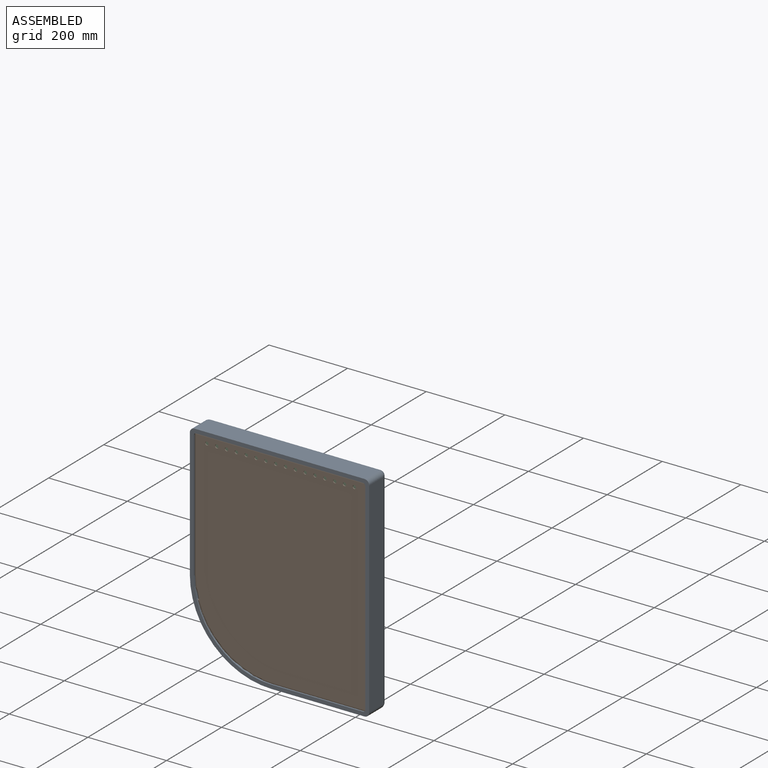
[diagram: assembled view]
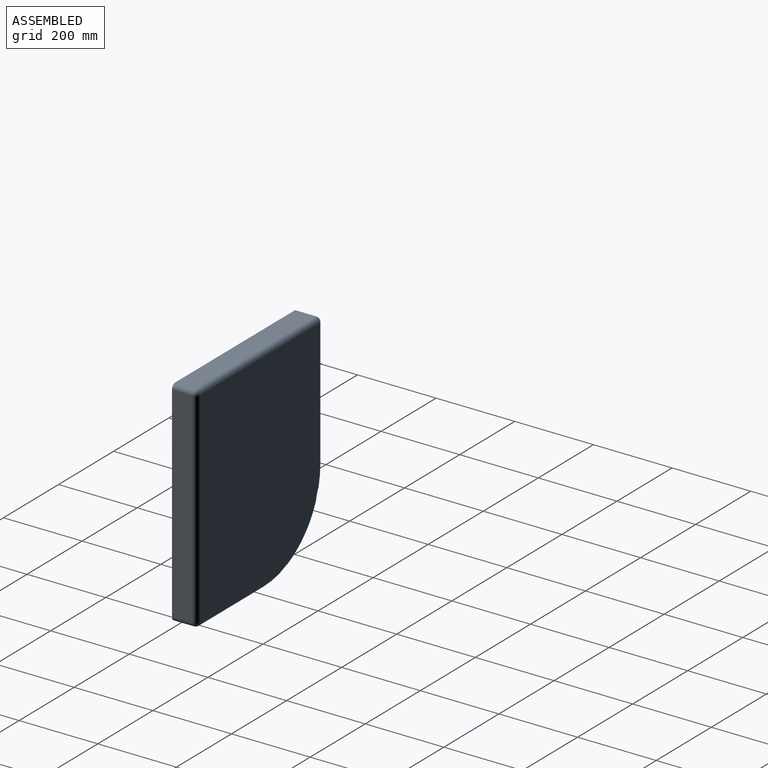
[diagram: assembled view, second angle]
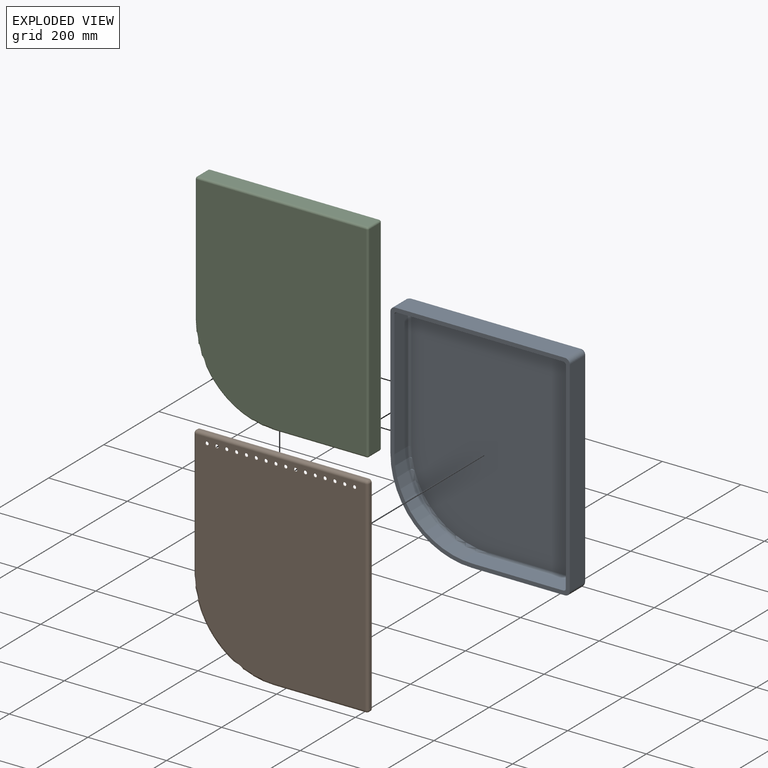
[diagram: exploded view]
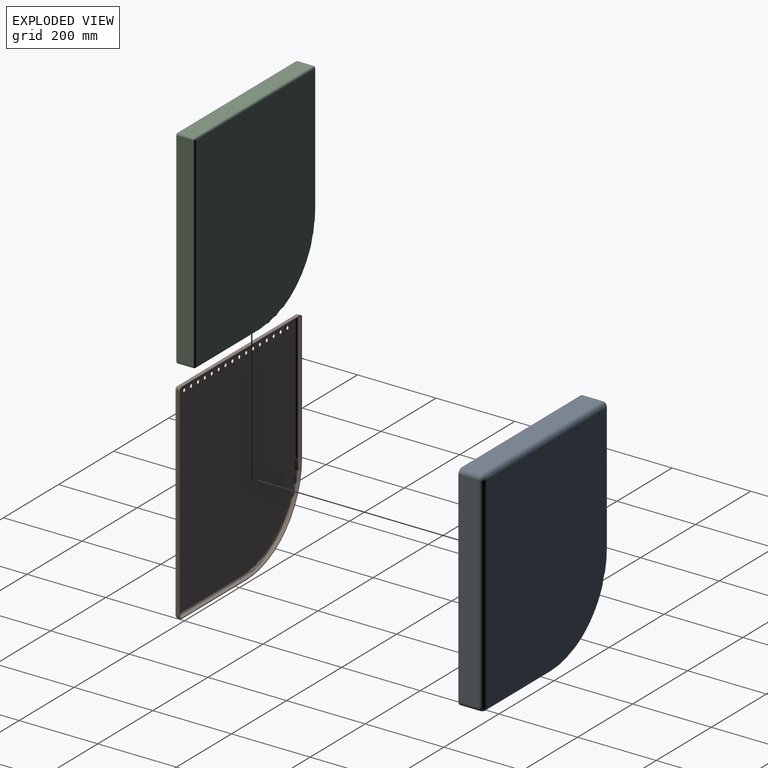
[diagram: exploded view, second angle]
ASSEMBLY  parts=3 mates=3
PART A: 35 faces, bbox 473.1x64x563.1 mm
  f0: plane 546x456mm, normal (0,-1,0), area 18699.2mm2, adj f1,f2,f3,f4,f6,f7,f9,f12
  f1: plane 432x52mm, normal (0,0,1), area 22464mm2, adj f0,f7,f11,f12
  f2: plane 326x52mm, normal (-1,0,0), area 16952mm2, adj f0,f6,f12,f16
  f3: plane 236x52mm, normal (0,0,-1), area 12272mm2, adj f0,f6,f9,f15
  f4: plane 522x52mm, normal (1,0,0), area 27144mm2, adj f0,f7,f9,f10
  f5: plane 522x432mm, normal (0,1,0), area 217259.9mm2, adj f10,f11,f15,f16,f17
  f6: cylinder r=208mm len=208mm, axis (0,1,0), area 16989.7mm2, adj f0,f2,f3,f17
  f7: cylinder r=12mm len=52mm, axis (0,1,0), area 980.2mm2, adj f0,f1,f4,f8
  f8: sphere r=12mm, area 226.2mm2, adj f7,f10,f11
  f9: cylinder r=12mm len=52mm, axis (0,-1,0), area 980.2mm2, adj f0,f3,f4,f13
  f10: cylinder r=12mm len=522mm, axis (0,0,1), area 9839.5mm2, adj f4,f5,f8,f13
  f11: cylinder r=12mm len=432mm, axis (-1,0,0), area 8143mm2, adj f1,f5,f8,f14
  f12: cylinder r=12mm len=52mm, axis (0,-1,0), area 980.2mm2, adj f0,f1,f2,f14
  f13: sphere r=12mm, area 226.2mm2, adj f9,f10,f15
  f14: sphere r=12mm, area 226.2mm2, adj f11,f12,f16
  f15: cylinder r=12mm len=236mm, axis (1,0,0), area 4448.5mm2, adj f3,f5,f13,f17
  f16: cylinder r=12mm len=326mm, axis (0,0,-1), area 6145mm2, adj f2,f5,f14,f17
  f17: torus R=196mm, axis (0,-1,0), area 6029.5mm2, adj f5,f6,f15,f16
  f18: plane 424x48mm, normal (0,0,-1), area 20352mm2, adj f0,f24,f28,f29
  f19: plane 322x48mm, normal (1,0,0), area 15456mm2, adj f0,f23,f29,f33
  f20: plane 232x48mm, normal (0,0,1), area 11136mm2, adj f0,f23,f26,f32
  f21: plane 514x48mm, normal (-1,0,0), area 24672mm2, adj f0,f24,f26,f27
  f22: plane 514x424mm, normal (0,-1,0), area 210024.9mm2, adj f27,f28,f32,f33,f34
  f23: cylinder r=198mm len=198mm, axis (0,1,0), area 14928.8mm2, adj f0,f19,f20,f34
  f24: cylinder r=6mm len=48mm, axis (0,1,0), area 452.4mm2, adj f0,f18,f21,f25
  f25: sphere r=6mm, area 56.5mm2, adj f24,f27,f28
  f26: cylinder r=6mm len=48mm, axis (0,-1,0), area 452.4mm2, adj f0,f20,f21,f30
  f27: cylinder r=6mm len=514mm, axis (0,0,1), area 4844.3mm2, adj f21,f22,f25,f30
  f28: cylinder r=6mm len=424mm, axis (-1,0,0), area 3996.1mm2, adj f18,f22,f25,f31
  f29: cylinder r=6mm len=48mm, axis (0,-1,0), area 452.4mm2, adj f0,f18,f19,f31
  f30: sphere r=6mm, area 56.5mm2, adj f26,f27,f32
  f31: sphere r=6mm, area 56.5mm2, adj f28,f29,f33
  f32: cylinder r=6mm len=232mm, axis (1,0,0), area 2186.5mm2, adj f20,f22,f30,f34
  f33: cylinder r=6mm len=322mm, axis (0,0,-1), area 3034.8mm2, adj f19,f22,f31,f34
  f34: torus R=192mm, axis (0,-1,0), area 2899mm2, adj f22,f23,f32,f33
PART B: 51 faces, bbox 460.6x14x550.6 mm
  f0: cylinder r=4.36mm len=8.72mm, axis (0,-1,0), area 54.8mm2, adj f20,f26
  f1: cylinder r=4.36mm len=8.72mm, axis (0,-1,0), area 54.8mm2, adj f20,f26
  f2: cylinder r=4.36mm len=8.72mm, axis (0,-1,0), area 54.8mm2, adj f20,f26
  f3: cylinder r=4.36mm len=8.72mm, axis (0,-1,0), area 54.8mm2, adj f20,f26
  f4: cylinder r=4.36mm len=8.72mm, axis (0,-1,0), area 54.8mm2, adj f20,f26
  f5: cylinder r=4.36mm len=8.72mm, axis (0,-1,0), area 54.8mm2, adj f20,f26
  f6: cylinder r=4.36mm len=8.72mm, axis (0,-1,0), area 54.8mm2, adj f20,f26
  f7: cylinder r=4.36mm len=8.72mm, axis (0,-1,0), area 54.8mm2, adj f20,f26
  f8: cylinder r=4.36mm len=8.72mm, axis (0,-1,0), area 54.8mm2, adj f20,f26
  f9: cylinder r=4.36mm len=8.72mm, axis (0,-1,0), area 54.8mm2, adj f20,f26
  f10: cylinder r=4.36mm len=8.72mm, axis (0,-1,0), area 54.8mm2, adj f20,f26
  f11: cylinder r=4.36mm len=8.72mm, axis (0,-1,0), area 54.8mm2, adj f20,f26
  f12: cylinder r=4.36mm len=8.72mm, axis (0,-1,0), area 54.8mm2, adj f20,f26
  f13: cylinder r=4.36mm len=8.72mm, axis (0,-1,0), area 54.8mm2, adj f20,f26
  f14: cylinder r=4.36mm len=8.72mm, axis (0,-1,0), area 54.8mm2, adj f20,f26
  f15: plane 430x7mm, normal (0,0,1), area 3010mm2, adj f19,f39,f43,f44
  f16: plane 325x7mm, normal (-1,0,0), area 2275mm2, adj f19,f21,f44,f48
  f17: plane 235x7mm, normal (0,0,-1), area 1645mm2, adj f19,f21,f41,f47
  f18: plane 520x7mm, normal (1,0,0), area 3640mm2, adj f19,f39,f41,f42
  f19: plane 534x444mm, normal (0,1,0), area 3708mm2, adj f15,f16,f17,f18,f21,f22,f23,f24
  f20: plane 520x430mm, normal (0,-1,0), area 214483.6mm2, adj f0,f1,f2,f3,f4,f5,f6,f7
  f21: cylinder r=202mm len=202mm, axis (0,-1,0), area 2221.1mm2, adj f16,f17,f19,f49
  f22: plane 430x7mm, normal (0,0,-1), area 3010mm2, adj f19,f32,f36,f38
  f23: plane 325x7mm, normal (1,0,0), area 2275mm2, adj f19,f27,f31,f32
  f24: plane 235x7mm, normal (0,0,1), area 1645mm2, adj f19,f27,f29,f30
  f25: plane 520x7mm, normal (-1,0,0), area 3640mm2, adj f19,f29,f35,f38
  f26: plane 520x430mm, normal (0,1,0), area 214483.6mm2, adj f0,f1,f2,f3,f4,f5,f6,f7
  f27: cylinder r=200mm len=200mm, axis (0,-1,0), area 2199.1mm2, adj f19,f23,f24,f28
  f28: torus R=195mm, axis (0,1,0), area 2445mm2, adj f26,f27,f30,f31
  f29: cylinder r=5mm len=7mm, axis (0,-1,0), area 55mm2, adj f19,f24,f25,f33
  f30: cylinder r=5mm len=235mm, axis (-1,0,0), area 1845.7mm2, adj f24,f26,f28,f33
  f31: cylinder r=5mm len=325mm, axis (0,0,1), area 2552.5mm2, adj f23,f26,f28,f34
  f32: cylinder r=5mm len=7mm, axis (0,-1,0), area 55mm2, adj f19,f22,f23,f34
  f33: sphere r=5mm, area 39.3mm2, adj f29,f30,f35
  f34: sphere r=5mm, area 39.3mm2, adj f31,f32,f36
  f35: cylinder r=5mm len=520mm, axis (0,0,-1), area 4084.1mm2, adj f25,f26,f33,f37
  f36: cylinder r=5mm len=430mm, axis (1,0,0), area 3377.2mm2, adj f22,f26,f34,f37
  f37: sphere r=5mm, area 39.3mm2, adj f35,f36,f38
  f38: cylinder r=5mm len=7mm, axis (0,1,0), area 55mm2, adj f19,f22,f25,f37
  f39: cylinder r=7mm len=7mm, axis (0,-1,0), area 77mm2, adj f15,f18,f19,f40
  f40: sphere r=7mm, area 77mm2, adj f39,f42,f43
  f41: cylinder r=7mm len=7mm, axis (0,1,0), area 77mm2, adj f17,f18,f19,f45
  f42: cylinder r=7mm len=520mm, axis (0,0,1), area 5717.7mm2, adj f18,f20,f40,f45
  f43: cylinder r=7mm len=430mm, axis (-1,0,0), area 4728.1mm2, adj f15,f20,f40,f46
  f44: cylinder r=7mm len=7mm, axis (0,1,0), area 77mm2, adj f15,f16,f19,f46
  f45: sphere r=7mm, area 77mm2, adj f41,f42,f47
  f46: sphere r=7mm, area 77mm2, adj f43,f44,f48
  f47: cylinder r=7mm len=235mm, axis (1,0,0), area 2584mm2, adj f17,f20,f45,f49
  f48: cylinder r=7mm len=325mm, axis (0,0,-1), area 3573.6mm2, adj f16,f20,f46,f49
  f49: torus R=195mm, axis (0,1,0), area 3445mm2, adj f20,f21,f47,f48
  f50: cylinder r=4.36mm len=8.72mm, axis (0,-1,0), area 54.8mm2, adj f20,f26
PART C: 26 faces, bbox 456.5x50x546.5 mm
  f0: plane 430x40mm, normal (0,0,1), area 17200mm2, adj f10,f11,f17,f18
  f1: plane 325x40mm, normal (-1,0,0), area 13000mm2, adj f6,f9,f17,f23
  f2: plane 235x40mm, normal (0,0,-1), area 9400mm2, adj f6,f13,f20,f24
  f3: plane 520x40mm, normal (1,0,0), area 20800mm2, adj f11,f12,f19,f20
  f4: plane 520x430mm, normal (0,-1,0), area 215439.8mm2, adj f18,f19,f23,f24,f25
  f5: plane 520x430mm, normal (0,1,0), area 215439.8mm2, adj f8,f9,f10,f12,f13
  f6: cylinder r=200mm len=200mm, axis (0,1,0), area 12566.4mm2, adj f1,f2,f8,f25
  f7: sphere r=5mm, area 39.3mm2, adj f10,f11,f12
  f8: torus R=195mm, axis (0,-1,0), area 2445mm2, adj f5,f6,f9,f13
  f9: cylinder r=5mm len=325mm, axis (0,0,-1), area 2552.5mm2, adj f1,f5,f8,f14
  f10: cylinder r=5mm len=430mm, axis (-1,0,0), area 3377.2mm2, adj f0,f5,f7,f14
  f11: cylinder r=5mm len=40mm, axis (0,1,0), area 314.2mm2, adj f0,f3,f7,f15
  f12: cylinder r=5mm len=520mm, axis (0,0,1), area 4084.1mm2, adj f3,f5,f7,f16
  f13: cylinder r=5mm len=235mm, axis (1,0,0), area 1845.7mm2, adj f2,f5,f8,f16
  f14: sphere r=5mm, area 39.3mm2, adj f9,f10,f17
  f15: sphere r=5mm, area 39.3mm2, adj f11,f18,f19
  f16: sphere r=5mm, area 39.3mm2, adj f12,f13,f20
  f17: cylinder r=5mm len=40mm, axis (0,-1,0), area 314.2mm2, adj f0,f1,f14,f21
  f18: cylinder r=5mm len=430mm, axis (1,0,0), area 3377.2mm2, adj f0,f4,f15,f21
  f19: cylinder r=5mm len=520mm, axis (0,0,-1), area 4084.1mm2, adj f3,f4,f15,f22
  f20: cylinder r=5mm len=40mm, axis (0,-1,0), area 314.2mm2, adj f2,f3,f16,f22
  f21: sphere r=5mm, area 39.3mm2, adj f17,f18,f23
  f22: sphere r=5mm, area 39.3mm2, adj f19,f20,f24
  f23: cylinder r=5mm len=325mm, axis (0,0,1), area 2552.5mm2, adj f1,f4,f21,f25
  f24: cylinder r=5mm len=235mm, axis (-1,0,0), area 1845.7mm2, adj f2,f4,f22,f25
  f25: torus R=195mm, axis (0,-1,0), area 2445mm2, adj f4,f6,f23,f24
PLACE A t=(-19.88,51.46,-10.54)mm
PLACE B t=(-18.77,-108.16,-10.09)mm
PLACE C t=(-17.88,49.84,-11.49)mm
MATE parallel C.f5 <-> A.f22  axis (0,1,0) through (-181.16,49.84,227.39)mm
MATE planar B.f26 <-> C.f4  axis (0,1,0) through (-182.01,-0.16,227.74)mm
MATE planar C.f1 <-> A.f19  axis (-1,0,0) through (-407.65,24.84,316.69)mm
